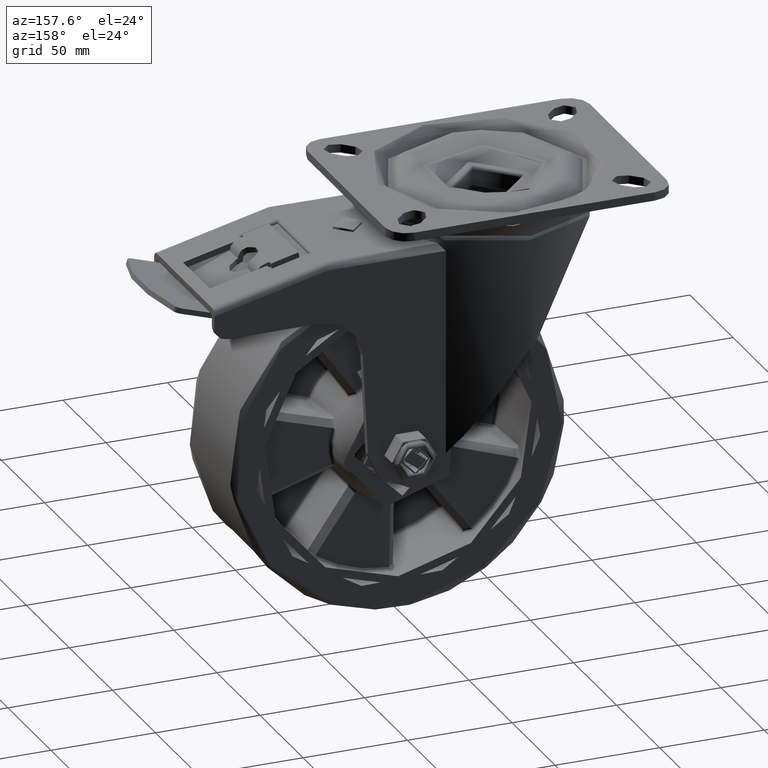
[diagram: clean part render]
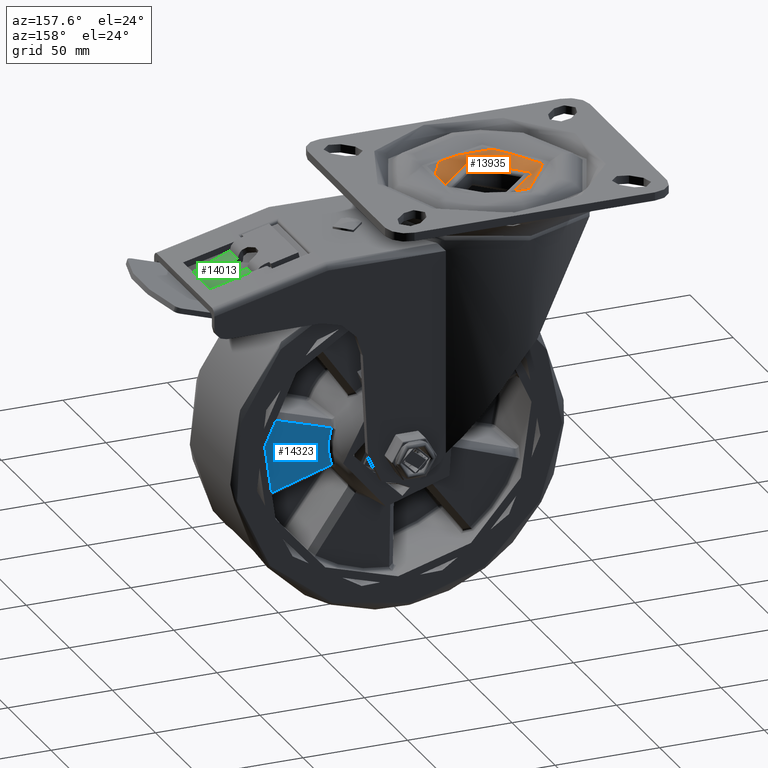
[diagram: same view with three faces highlighted in distinct colors, each labeled with its STEP entity id]
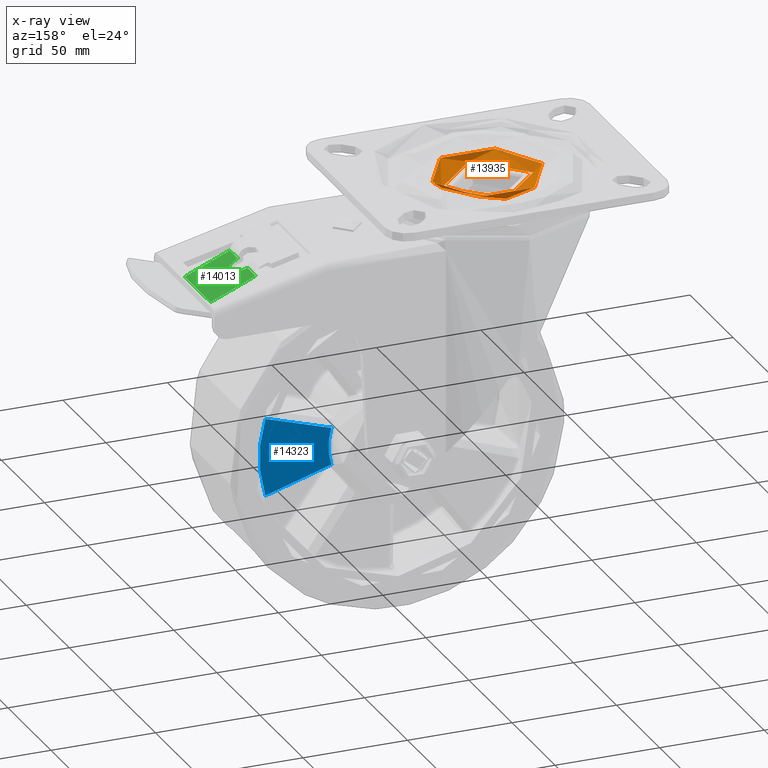
[diagram: x-ray of the same camera — body ghosted, the three highlighted faces saturated]
A machine part, auxiliary view with three faces highlighted in distinct colors.
The next image is the same camera in x-ray (body ghosted, the three faces saturated) — at least one of them is partly hidden behind the body in this view.
Their STEP definitions:

[orange] entity #13935 — the highlighted conical surface has half-angle 51.34 deg.
#1859=CONICAL_SURFACE('',#15125,24.375,0.896055384571346);
#1884=FACE_OUTER_BOUND('',#2770,.T.);
#2770=EDGE_LOOP('',(#9568,#9569,#9570,#9571,#9572));
#3812=LINE('',#21023,#4532);
#4532=VECTOR('',#16906,24.375);
#5261=CIRCLE('',#15126,21.875);
#5262=CIRCLE('',#15127,26.3271720236076);
#5263=CIRCLE('',#15128,26.3271720236076);
#6120=VERTEX_POINT('',#21020);
#6121=VERTEX_POINT('',#21022);
#6122=VERTEX_POINT('',#21024);
#7461=EDGE_CURVE('',#6120,#6120,#5261,.T.);
#7462=EDGE_CURVE('',#6120,#6121,#3812,.T.);
#7463=EDGE_CURVE('',#6122,#6121,#5262,.T.);
#7464=EDGE_CURVE('',#6121,#6122,#5263,.T.);
#9568=ORIENTED_EDGE('',*,*,#7461,.F.);
#9569=ORIENTED_EDGE('',*,*,#7462,.T.);
#9570=ORIENTED_EDGE('',*,*,#7463,.F.);
#9571=ORIENTED_EDGE('',*,*,#7464,.F.);
#9572=ORIENTED_EDGE('',*,*,#7462,.F.);
#13935=ADVANCED_FACE('',(#1884),#1859,.F.);
#15125=AXIS2_PLACEMENT_3D('',#21019,#16902,#16903);
#15126=AXIS2_PLACEMENT_3D('',#21021,#16904,#16905);
#15127=AXIS2_PLACEMENT_3D('',#21025,#16907,#16908);
#15128=AXIS2_PLACEMENT_3D('',#21026,#16909,#16910);
#16902=DIRECTION('center_axis',(0.,0.,1.));
#16903=DIRECTION('ref_axis',(-1.,0.,0.));
#16904=DIRECTION('center_axis',(0.,0.,1.));
#16905=DIRECTION('ref_axis',(-1.,0.,0.));
#16906=DIRECTION('',(0.780868809443032,9.56288488038413E-17,0.624695047554423));
#16907=DIRECTION('center_axis',(9.38946633178195E-16,-1.64727479504935E-17,
-1.));
#16908=DIRECTION('ref_axis',(1.,1.75568870913466E-31,9.38946633178195E-16));
#16909=DIRECTION('center_axis',(9.38946633178195E-16,-1.64727479504935E-17,
-1.));
#16910=DIRECTION('ref_axis',(1.,1.75568870913466E-31,9.38946633178195E-16));
#21019=CARTESIAN_POINT('Origin',(0.,0.,-5.00000000000005));
#21020=CARTESIAN_POINT('',(21.875,-2.67891487313483E-15,-7.00000000000004));
#21021=CARTESIAN_POINT('Origin',(0.,0.,-7.00000000000004));
#21022=CARTESIAN_POINT('',(26.3271720236076,-3.22414869493128E-15,-3.43826238111396));
#21023=CARTESIAN_POINT('',(24.375,2.98507657292167E-15,-5.00000000000005));
#21024=CARTESIAN_POINT('',(-26.3271720236076,-3.22414869493127E-15,-3.43826238111401));
#21025=CARTESIAN_POINT('Origin',(2.94902990916057E-14,3.22414869493128E-15,
-3.43826238111399));
#21026=CARTESIAN_POINT('Origin',(2.94902990916057E-14,3.22414869493128E-15,
-3.43826238111399));

[blue] entity #14323 — the highlighted planar face has unit normal (0, -1, -0).
#1134=PLANE('',#15939);
#1494=B_SPLINE_CURVE_WITH_KNOTS('',3,(#38408,#38409,#38410,#38411,#38412,
#38413,#38414,#38415,#38416,#38417,#38418,#38419,#38420),.UNSPECIFIED.,
 .F.,.F.,(4,2,1,1,2,2,1,4),(0.00170022648120672,0.00301446119501981,0.00912359094198058,
0.0129417970338311,0.0167600031256816,0.0228691328726423,0.0326437404677796,
0.0347003278168346),.UNSPECIFIED.);
#1496=B_SPLINE_CURVE_WITH_KNOTS('',3,(#38449,#38450,#38451,#38452,#38453,
#38454,#38455,#38456,#38457,#38458,#38459,#38460),.UNSPECIFIED.,.F.,.F.,
(4,2,2,1,1,1,1,4),(0.00150007452803666,0.00355666187711053,0.0133312694722507,
0.0194403992192133,0.023258605311065,0.0270768114029166,0.0331859411498792,
0.0345001758636813),.UNSPECIFIED.);
#2272=FACE_OUTER_BOUND('',#3203,.T.);
#3203=EDGE_LOOP('',(#11598,#11599,#11600,#11601));
#5639=CIRCLE('',#15924,30.);
#5649=CIRCLE('',#15940,63.);
#6820=VERTEX_POINT('',#34983);
#6821=VERTEX_POINT('',#35012);
#6827=VERTEX_POINT('',#38407);
#6828=VERTEX_POINT('',#38448);
#8522=EDGE_CURVE('',#6820,#6821,#5639,.T.);
#8542=EDGE_CURVE('',#6821,#6827,#1494,.T.);
#8544=EDGE_CURVE('',#6828,#6820,#1496,.T.);
#8545=EDGE_CURVE('',#6827,#6828,#5649,.T.);
#11598=ORIENTED_EDGE('',*,*,#8522,.F.);
#11599=ORIENTED_EDGE('',*,*,#8544,.F.);
#11600=ORIENTED_EDGE('',*,*,#8545,.F.);
#11601=ORIENTED_EDGE('',*,*,#8542,.F.);
#14323=ADVANCED_FACE('',(#2272),#1134,.F.);
#15924=AXIS2_PLACEMENT_3D('',#35014,#18944,#18945);
#15939=AXIS2_PLACEMENT_3D('',#38447,#18974,#18975);
#15940=AXIS2_PLACEMENT_3D('',#38461,#18976,#18977);
#18944=DIRECTION('center_axis',(-4.75158170683057E-47,1.,2.25514051876985E-15));
#18945=DIRECTION('ref_axis',(1.,-4.05753781391557E-31,1.79923946208412E-16));
#18974=DIRECTION('center_axis',(0.,-1.,-2.25514051876985E-15));
#18975=DIRECTION('ref_axis',(-0.587785252292473,1.82444700438834E-15,-0.809016994374947));
#18976=DIRECTION('center_axis',(0.,-1.,-2.25514051876985E-15));
#18977=DIRECTION('ref_axis',(1.,-1.25784223591779E-30,5.57766678150915E-16));
#34983=CARTESIAN_POINT('',(28.6495499981025,17.0000000000001,8.89962273954508));
#35012=CARTESIAN_POINT('',(28.6495499981023,17.0000000000001,-8.89962273954558));
#35014=CARTESIAN_POINT('Origin',(0.,17.0000000000001,-3.38271077815478E-15));
#38407=CARTESIAN_POINT('',(60.199104836877,16.999999999998,-18.576000022591));
#38408=CARTESIAN_POINT('Ctrl Pts',(28.6495499980925,17.0000000000001,-8.89962273949621));
#38409=CARTESIAN_POINT('Ctrl Pts',(29.0683676721266,17.0000000000001,-9.02809179600169));
#38410=CARTESIAN_POINT('Ctrl Pts',(29.4871855239444,17.0000000000001,-9.15656027291792));
#38411=CARTESIAN_POINT('Ctrl Pts',(31.852850381456,17.0000000000001,-9.88220236079176));
#38412=CARTESIAN_POINT('Ctrl Pts',(35.0164827216232,17.0000000000001,-10.8525900622537));
#38413=CARTESIAN_POINT('Ctrl Pts',(39.3969108039658,17.0000000000001,-12.1961579217844));
#38414=CARTESIAN_POINT('Ctrl Pts',(41.8304879801693,17.0000000000001,-12.9425648850577));
#38415=CARTESIAN_POINT('Ctrl Pts',(44.9941422250779,17.0000000000001,-13.9128811696255));
#38416=CARTESIAN_POINT('Ctrl Pts',(46.9410102314775,17.0000000000001,-14.5099863118944));
#38417=CARTESIAN_POINT('Ctrl Pts',(52.002877085525,17.0000000000001,-16.0624269550975));
#38418=CARTESIAN_POINT('Ctrl Pts',(55.7732821388068,17.0000000000001,-17.2187422457825));
#38419=CARTESIAN_POINT('Ctrl Pts',(59.5437016944595,17.0000000000001,-18.375010245748));
#38420=CARTESIAN_POINT('Ctrl Pts',(60.1991048368475,17.0000000000001,-18.5760000224713));
#38447=CARTESIAN_POINT('Origin',(-2.39729271306602E-14,17.0000000000001,
2.8951788169385E-14));
#38448=CARTESIAN_POINT('',(60.1991048368728,17.,18.5760000225882));
#38449=CARTESIAN_POINT('Ctrl Pts',(60.1991048368952,17.,18.5760000224889));
#38450=CARTESIAN_POINT('Ctrl Pts',(59.5437016945125,17.,18.3750102457691));
#38451=CARTESIAN_POINT('Ctrl Pts',(58.8882989904529,17.,18.174019039724));
#38452=CARTESIAN_POINT('Ctrl Pts',(55.1178819558183,17.,17.0177428193554));
#38453=CARTESIAN_POINT('Ctrl Pts',(52.0028770857553,17.,16.0624269551682));
#38454=CARTESIAN_POINT('Ctrl Pts',(46.9410102317567,17.0000000000001,14.5099863119801));
#38455=CARTESIAN_POINT('Ctrl Pts',(43.7773497213674,17.0000000000001,13.5396904557962));
#38456=CARTESIAN_POINT('Ctrl Pts',(39.3969108042423,17.0000000000001,12.1961579218688));
#38457=CARTESIAN_POINT('Ctrl Pts',(35.0164827218236,17.0000000000001,10.8525900622695));
#38458=CARTESIAN_POINT('Ctrl Pts',(31.4340315251672,17.0000000000001,9.75373715890862));
#38459=CARTESIAN_POINT('Ctrl Pts',(29.0683676721851,17.0000000000001,9.02809179599543));
#38460=CARTESIAN_POINT('Ctrl Pts',(28.6495499981445,17.0000000000001,8.89962273949466));
#38461=CARTESIAN_POINT('Origin',(0.,17.0000000000001,-3.38271077815478E-15));

[green] entity #14013 — the highlighted planar face has unit normal (0.3874, 0, 0.9219).
#36=ELLIPSE('',#15309,5.56582008341149,5.49999999999999);
#1007=PLANE('',#15321);
#1962=FACE_OUTER_BOUND('',#2867,.T.);
#2867=EDGE_LOOP('',(#9981,#9982,#9983,#9984,#9985,#9986,#9987,#9988));
#3885=LINE('',#23980,#4605);
#3889=LINE('',#23990,#4609);
#3890=LINE('',#23994,#4610);
#3893=LINE('',#24002,#4613);
#3894=LINE('',#24004,#4614);
#3895=LINE('',#24006,#4615);
#3896=LINE('',#24007,#4616);
#4605=VECTOR('',#17355,1000.);
#4609=VECTOR('',#17365,999.999999999999);
#4610=VECTOR('',#17370,999.999999999999);
#4613=VECTOR('',#17377,1000.);
#4614=VECTOR('',#17378,1000.);
#4615=VECTOR('',#17379,1000.);
#4616=VECTOR('',#17380,1000.);
#6220=VERTEX_POINT('',#23922);
#6221=VERTEX_POINT('',#23924);
#6230=VERTEX_POINT('',#23977);
#6231=VERTEX_POINT('',#23979);
#6235=VERTEX_POINT('',#23992);
#6238=VERTEX_POINT('',#24001);
#6239=VERTEX_POINT('',#24003);
#6240=VERTEX_POINT('',#24005);
#7631=EDGE_CURVE('',#6221,#6220,#36,.T.);
#7642=EDGE_CURVE('',#6231,#6230,#3885,.T.);
#7648=EDGE_CURVE('',#6230,#6221,#3889,.T.);
#7650=EDGE_CURVE('',#6220,#6235,#3890,.T.);
#7654=EDGE_CURVE('',#6235,#6238,#3893,.T.);
#7655=EDGE_CURVE('',#6238,#6239,#3894,.T.);
#7656=EDGE_CURVE('',#6239,#6240,#3895,.T.);
#7657=EDGE_CURVE('',#6240,#6231,#3896,.T.);
#9981=ORIENTED_EDGE('',*,*,#7648,.T.);
#9982=ORIENTED_EDGE('',*,*,#7631,.T.);
#9983=ORIENTED_EDGE('',*,*,#7650,.T.);
#9984=ORIENTED_EDGE('',*,*,#7654,.T.);
#9985=ORIENTED_EDGE('',*,*,#7655,.T.);
#9986=ORIENTED_EDGE('',*,*,#7656,.T.);
#9987=ORIENTED_EDGE('',*,*,#7657,.T.);
#9988=ORIENTED_EDGE('',*,*,#7642,.T.);
#14013=ADVANCED_FACE('',(#1962),#1007,.T.);
#15309=AXIS2_PLACEMENT_3D('',#23925,#17340,#17341);
#15321=AXIS2_PLACEMENT_3D('',#24000,#17375,#17376);
#17340=DIRECTION('center_axis',(-0.387384260948345,0.,-0.921918344740739));
#17341=DIRECTION('ref_axis',(0.921918344740739,0.,-0.387384260948345));
#17355=DIRECTION('',(0.,-1.,0.));
#17365=DIRECTION('',(0.921918344740739,-3.42841808570442E-15,-0.387384260948345));
#17370=DIRECTION('',(-0.921918344740739,-3.85697034641747E-15,0.387384260948345));
#17375=DIRECTION('center_axis',(0.387384260948345,0.,0.921918344740739));
#17376=DIRECTION('ref_axis',(-0.921918344740739,0.,0.387384260948345));
#17377=DIRECTION('',(0.,-1.,0.));
#17378=DIRECTION('',(0.921918344740739,0.,-0.387384260948345));
#17379=DIRECTION('',(0.,1.,0.));
#17380=DIRECTION('',(-0.921918344740739,0.,0.387384260948345));
#23922=CARTESIAN_POINT('',(118.175520049274,-5.49999999999999,-27.825352697508));
#23924=CARTESIAN_POINT('',(118.175520049274,5.49999999999999,-27.825352697508));
#23925=CARTESIAN_POINT('Origin',(118.175520049274,6.73533494602307E-16,
-27.825352697508));
#23977=CARTESIAN_POINT('',(117.075576643857,5.5,-27.3631634313728));
#23979=CARTESIAN_POINT('',(117.075576643857,15.,-27.3631634313728));
#23980=CARTESIAN_POINT('',(117.075576643857,0.,-27.3631634313728));
#23990=CARTESIAN_POINT('',(121.806098688229,5.49999999999998,-29.35089889245));
#23992=CARTESIAN_POINT('',(117.075576643857,-5.5,-27.3631634313728));
#23994=CARTESIAN_POINT('',(121.806098688229,-5.49999999999997,-29.35089889245));
#24000=CARTESIAN_POINT('Origin',(127.84135994014,0.,-31.8868775211856));
#24001=CARTESIAN_POINT('',(117.075576643857,-15.,-27.3631634313728));
#24002=CARTESIAN_POINT('',(117.075576643857,0.,-27.3631634313728));
#24003=CARTESIAN_POINT('',(138.607143236423,-15.,-36.4105916109984));
#24004=CARTESIAN_POINT('',(117.075576643857,-15.,-27.3631634313728));
#24005=CARTESIAN_POINT('',(138.607143236423,15.,-36.4105916109984));
#24006=CARTESIAN_POINT('',(138.607143236423,0.,-36.4105916109984));
#24007=CARTESIAN_POINT('',(117.075576643857,15.,-27.3631634313728));